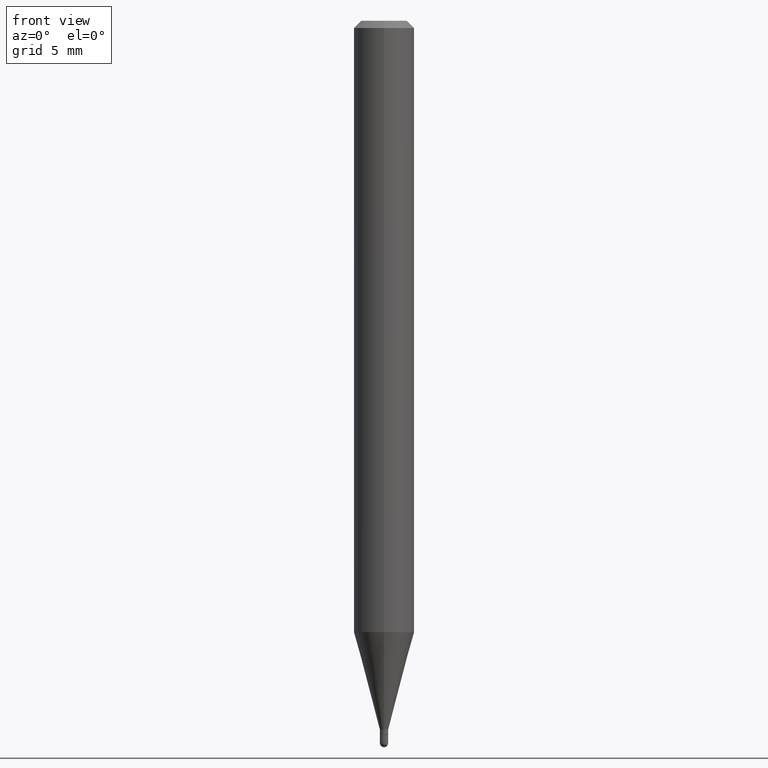
[diagram: clean part render]
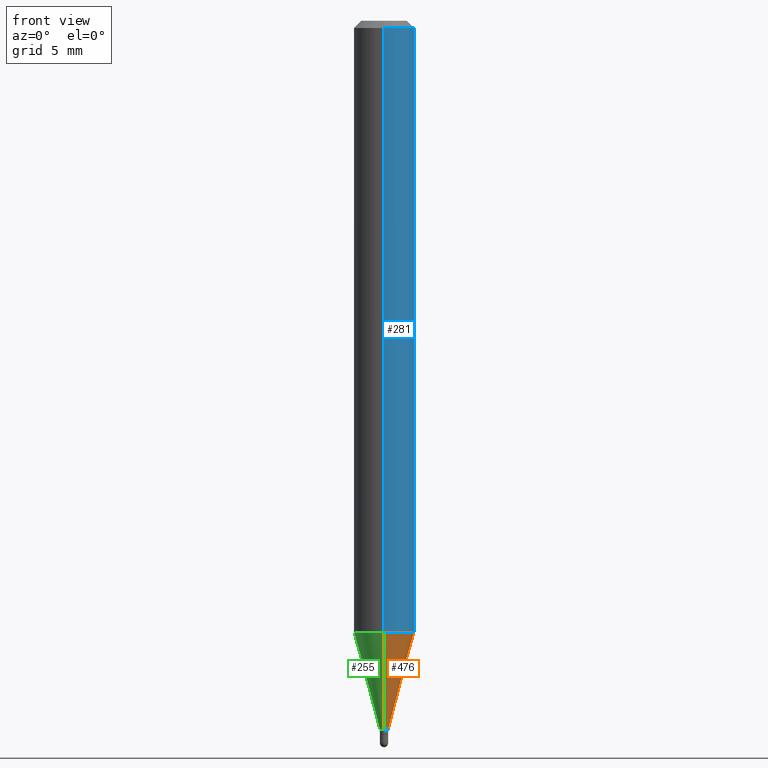
[diagram: same view with three faces highlighted in distinct colors, each labeled with its STEP entity id]
A machine part, front view with three faces highlighted in distinct colors.
Their STEP definitions:

[orange] entity #476 — the highlighted conical surface has half-angle 15 deg.
#20 = VECTOR ( 'NONE', #334, 39.37007874015747433 ) ;
#49 = DIRECTION ( 'NONE',  ( -6.982962677686265922E-15, -1.000000000000000000, 4.370956789862821150E-15 ) ) ;
#52 = LINE ( 'NONE', #361, #89 ) ;
#53 = LINE ( 'NONE', #178, #20 ) ;
#57 = VERTEX_POINT ( 'NONE', #104 ) ;
#59 = DIRECTION ( 'NONE',  ( -6.982962677686266711E-15, -1.000000000000000000, 0.000000000000000000 ) ) ;
#80 = CARTESIAN_POINT ( 'NONE',  ( -4.364351673553606573E-16, -0.06250000000000439926, -1.262469256391280714 ) ) ;
#86 = AXIS2_PLACEMENT_3D ( 'NONE', #366, #247, #326 ) ;
#89 = VECTOR ( 'NONE', #330, 39.37007874015749564 ) ;
#91 = FACE_OUTER_BOUND ( 'NONE', #415, .T. ) ;
#104 = CARTESIAN_POINT ( 'NONE',  ( 4.440892098500932831E-16, 0.06249999999999557992, -1.262469256391281158 ) ) ;
#125 = CARTESIAN_POINT ( 'NONE',  ( -5.935518276029691682E-17, -0.008500000000005034778, -1.463999999999999968 ) ) ;
#134 = EDGE_CURVE ( 'NONE', #370, #57, #53, .T. ) ;
#168 = DIRECTION ( 'NONE',  ( -2.445476314194912029E-29, 3.491470586945817923E-15, 1.000000000000000000 ) ) ;
#178 = CARTESIAN_POINT ( 'NONE',  ( 6.039613253964376003E-17, 0.008499999999994812053, -1.463999999999999968 ) ) ;
#189 = AXIS2_PLACEMENT_3D ( 'NONE', #283, #168, #59 ) ;
#190 = ORIENTED_EDGE ( 'NONE', *, *, #437, .F. ) ;
#247 = DIRECTION ( 'NONE',  ( -2.445476314194912029E-29, 3.491470586945817923E-15, 1.000000000000000000 ) ) ;
#272 = ORIENTED_EDGE ( 'NONE', *, *, #458, .F. ) ;
#283 = CARTESIAN_POINT ( 'NONE',  ( 3.580177323981351404E-29, -5.111512939288677386E-15, -1.463999999999999968 ) ) ;
#297 = ORIENTED_EDGE ( 'NONE', *, *, #389, .T. ) ;
#307 = CONICAL_SURFACE ( 'NONE', #86, 0.008499999999999922548, 0.2617993877991501295 ) ;
#308 = CIRCLE ( 'NONE', #379, 0.06250000000000000000 ) ;
#314 = VERTEX_POINT ( 'NONE', #80 ) ;
#315 = ORIENTED_EDGE ( 'NONE', *, *, #134, .T. ) ;
#326 = DIRECTION ( 'NONE',  ( -6.982962677686266711E-15, -1.000000000000000000, 0.000000000000000000 ) ) ;
#330 = DIRECTION ( 'NONE',  ( -1.807323732225328562E-15, -0.2588190451025179639, 0.9659258262890689783 ) ) ;
#334 = DIRECTION ( 'NONE',  ( 1.839019923739599526E-15, 0.2588190451025248473, 0.9659258262890673130 ) ) ;
#359 = VERTEX_POINT ( 'NONE', #125 ) ;
#361 = CARTESIAN_POINT ( 'NONE',  ( -5.935518276029691682E-17, -0.008500000000005034778, -1.463999999999999968 ) ) ;
#366 = CARTESIAN_POINT ( 'NONE',  ( 3.580177323981351404E-29, -5.111512939288677386E-15, -1.463999999999999968 ) ) ;
#370 = VERTEX_POINT ( 'NONE', #402 ) ;
#379 = AXIS2_PLACEMENT_3D ( 'NONE', #440, #405, #49 ) ;
#389 = EDGE_CURVE ( 'NONE', #359, #370, #413, .T. ) ;
#402 = CARTESIAN_POINT ( 'NONE',  ( 2.522426711948687250E-16, 0.008499999999994812053, -1.463999999999999968 ) ) ;
#405 = DIRECTION ( 'NONE',  ( -2.445476314194912029E-29, 3.491470586945817923E-15, 1.000000000000000000 ) ) ;
#413 = CIRCLE ( 'NONE', #189, 0.008499999999999922548 ) ;
#415 = EDGE_LOOP ( 'NONE', ( #297, #315, #272, #190 ) ) ;
#437 = EDGE_CURVE ( 'NONE', #359, #314, #52, .T. ) ;
#440 = CARTESIAN_POINT ( 'NONE',  ( 3.087338663904141149E-29, -4.407874275613516447E-15, -1.262469256391280936 ) ) ;
#458 = EDGE_CURVE ( 'NONE', #314, #57, #308, .T. ) ;
#476 = ADVANCED_FACE ( 'NONE', ( #91 ), #307, .T. ) ;

[blue] entity #281 — the highlighted cylindrical surface (edge-blend (fillet) strip) has radius 1.5875 mm, axis along (-0, 0, 1).
#14 = DIRECTION ( 'NONE',  ( -6.982962677686265922E-15, -1.000000000000000000, 3.483106191921935554E-15 ) ) ;
#16 = VECTOR ( 'NONE', #409, 39.37007874015748143 ) ;
#31 = AXIS2_PLACEMENT_3D ( 'NONE', #181, #214, #14 ) ;
#33 = FACE_OUTER_BOUND ( 'NONE', #39, .T. ) ;
#37 = CYLINDRICAL_SURFACE ( 'NONE', #367, 0.06250000000000000000 ) ;
#39 = EDGE_LOOP ( 'NONE', ( #158, #403, #466, #376 ) ) ;
#49 = DIRECTION ( 'NONE',  ( -6.982962677686265922E-15, -1.000000000000000000, 4.370956789862821150E-15 ) ) ;
#57 = VERTEX_POINT ( 'NONE', #104 ) ;
#80 = CARTESIAN_POINT ( 'NONE',  ( -4.364351673553606573E-16, -0.06250000000000439926, -1.262469256391280714 ) ) ;
#104 = CARTESIAN_POINT ( 'NONE',  ( 4.440892098500932831E-16, 0.06249999999999557992, -1.262469256391281158 ) ) ;
#132 = DIRECTION ( 'NONE',  ( -2.445476314194912029E-29, 3.491470586945817529E-15, 1.000000000000000000 ) ) ;
#141 = CIRCLE ( 'NONE', #31, 0.06250000000000000000 ) ;
#158 = ORIENTED_EDGE ( 'NONE', *, *, #458, .T. ) ;
#181 = CARTESIAN_POINT ( 'NONE',  ( 3.668214471292309505E-31, -5.237205880418643043E-17, -0.01499999999999976179 ) ) ;
#192 = DIRECTION ( 'NONE',  ( -6.982962677686265922E-15, -1.000000000000000000, 3.491470586945817529E-15 ) ) ;
#214 = DIRECTION ( 'NONE',  ( -2.445476314194912029E-29, 3.491470586945817923E-15, 1.000000000000000000 ) ) ;
#250 = LINE ( 'NONE', #481, #16 ) ;
#273 = DIRECTION ( 'NONE',  ( -2.445476314194912029E-29, 3.491470586945817923E-15, 1.000000000000000000 ) ) ;
#274 = VERTEX_POINT ( 'NONE', #388 ) ;
#281 = ADVANCED_FACE ( 'NONE', ( #33 ), #37, .T. ) ;
#291 = VERTEX_POINT ( 'NONE', #507 ) ;
#308 = CIRCLE ( 'NONE', #379, 0.06250000000000000000 ) ;
#313 = CARTESIAN_POINT ( 'NONE',  ( 0.000000000000000000, 0.000000000000000000, 0.000000000000000000 ) ) ;
#314 = VERTEX_POINT ( 'NONE', #80 ) ;
#367 = AXIS2_PLACEMENT_3D ( 'NONE', #313, #273, #192 ) ;
#376 = ORIENTED_EDGE ( 'NONE', *, *, #495, .F. ) ;
#379 = AXIS2_PLACEMENT_3D ( 'NONE', #440, #405, #49 ) ;
#388 = CARTESIAN_POINT ( 'NONE',  ( 4.440892098500935790E-16, 0.06249999999999995143, -0.01499999999999997863 ) ) ;
#400 = VECTOR ( 'NONE', #132, 39.37007874015748143 ) ;
#403 = ORIENTED_EDGE ( 'NONE', *, *, #504, .T. ) ;
#405 = DIRECTION ( 'NONE',  ( -2.445476314194912029E-29, 3.491470586945817923E-15, 1.000000000000000000 ) ) ;
#409 = DIRECTION ( 'NONE',  ( -2.445476314194912029E-29, 3.491470586945817529E-15, 1.000000000000000000 ) ) ;
#440 = CARTESIAN_POINT ( 'NONE',  ( 3.087338663904141149E-29, -4.407874275613516447E-15, -1.262469256391280936 ) ) ;
#447 = LINE ( 'NONE', #471, #400 ) ;
#455 = EDGE_CURVE ( 'NONE', #291, #274, #141, .T. ) ;
#458 = EDGE_CURVE ( 'NONE', #314, #57, #308, .T. ) ;
#466 = ORIENTED_EDGE ( 'NONE', *, *, #455, .F. ) ;
#471 = CARTESIAN_POINT ( 'NONE',  ( 4.440892098500625669E-16, 0.06250000000000000000, -2.182169116841135955E-16 ) ) ;
#481 = CARTESIAN_POINT ( 'NONE',  ( -4.364351673553916201E-16, -0.06250000000000000000, 2.182169116841135955E-16 ) ) ;
#495 = EDGE_CURVE ( 'NONE', #314, #291, #250, .T. ) ;
#504 = EDGE_CURVE ( 'NONE', #57, #274, #447, .T. ) ;
#507 = CARTESIAN_POINT ( 'NONE',  ( -4.364351673553912750E-16, -0.06250000000000005551, -0.01499999999999954321 ) ) ;

[green] entity #255 — the highlighted conical surface has half-angle 15 deg.
#3 = DIRECTION ( 'NONE',  ( -2.445476314194912029E-29, 3.491470586945817923E-15, 1.000000000000000000 ) ) ;
#20 = VECTOR ( 'NONE', #334, 39.37007874015747433 ) ;
#32 = EDGE_CURVE ( 'NONE', #57, #314, #234, .T. ) ;
#43 = FACE_OUTER_BOUND ( 'NONE', #474, .T. ) ;
#51 = ORIENTED_EDGE ( 'NONE', *, *, #332, .T. ) ;
#52 = LINE ( 'NONE', #361, #89 ) ;
#53 = LINE ( 'NONE', #178, #20 ) ;
#57 = VERTEX_POINT ( 'NONE', #104 ) ;
#72 = ORIENTED_EDGE ( 'NONE', *, *, #437, .T. ) ;
#80 = CARTESIAN_POINT ( 'NONE',  ( -4.364351673553606573E-16, -0.06250000000000439926, -1.262469256391280714 ) ) ;
#89 = VECTOR ( 'NONE', #330, 39.37007874015749564 ) ;
#104 = CARTESIAN_POINT ( 'NONE',  ( 4.440892098500932831E-16, 0.06249999999999557992, -1.262469256391281158 ) ) ;
#125 = CARTESIAN_POINT ( 'NONE',  ( -5.935518276029691682E-17, -0.008500000000005034778, -1.463999999999999968 ) ) ;
#134 = EDGE_CURVE ( 'NONE', #370, #57, #53, .T. ) ;
#145 = ORIENTED_EDGE ( 'NONE', *, *, #134, .F. ) ;
#157 = DIRECTION ( 'NONE',  ( -2.445476314194912029E-29, 3.491470586945817923E-15, 1.000000000000000000 ) ) ;
#167 = DIRECTION ( 'NONE',  ( -6.982962677686265922E-15, -1.000000000000000000, 4.370956789862821150E-15 ) ) ;
#178 = CARTESIAN_POINT ( 'NONE',  ( 6.039613253964376003E-17, 0.008499999999994812053, -1.463999999999999968 ) ) ;
#194 = DIRECTION ( 'NONE',  ( -6.982962677686266711E-15, -1.000000000000000000, 0.000000000000000000 ) ) ;
#210 = AXIS2_PLACEMENT_3D ( 'NONE', #503, #427, #194 ) ;
#220 = ORIENTED_EDGE ( 'NONE', *, *, #32, .F. ) ;
#234 = CIRCLE ( 'NONE', #337, 0.06250000000000000000 ) ;
#255 = ADVANCED_FACE ( 'NONE', ( #43 ), #505, .T. ) ;
#269 = AXIS2_PLACEMENT_3D ( 'NONE', #350, #157, #469 ) ;
#314 = VERTEX_POINT ( 'NONE', #80 ) ;
#330 = DIRECTION ( 'NONE',  ( -1.807323732225328562E-15, -0.2588190451025179639, 0.9659258262890689783 ) ) ;
#332 = EDGE_CURVE ( 'NONE', #370, #359, #357, .T. ) ;
#334 = DIRECTION ( 'NONE',  ( 1.839019923739599526E-15, 0.2588190451025248473, 0.9659258262890673130 ) ) ;
#337 = AXIS2_PLACEMENT_3D ( 'NONE', #441, #3, #167 ) ;
#350 = CARTESIAN_POINT ( 'NONE',  ( 3.580177323981351404E-29, -5.111512939288677386E-15, -1.463999999999999968 ) ) ;
#357 = CIRCLE ( 'NONE', #269, 0.008499999999999922548 ) ;
#359 = VERTEX_POINT ( 'NONE', #125 ) ;
#361 = CARTESIAN_POINT ( 'NONE',  ( -5.935518276029691682E-17, -0.008500000000005034778, -1.463999999999999968 ) ) ;
#370 = VERTEX_POINT ( 'NONE', #402 ) ;
#402 = CARTESIAN_POINT ( 'NONE',  ( 2.522426711948687250E-16, 0.008499999999994812053, -1.463999999999999968 ) ) ;
#427 = DIRECTION ( 'NONE',  ( -2.445476314194912029E-29, 3.491470586945817923E-15, 1.000000000000000000 ) ) ;
#437 = EDGE_CURVE ( 'NONE', #359, #314, #52, .T. ) ;
#441 = CARTESIAN_POINT ( 'NONE',  ( 3.087338663904141149E-29, -4.407874275613516447E-15, -1.262469256391280936 ) ) ;
#469 = DIRECTION ( 'NONE',  ( -6.982962677686266711E-15, -1.000000000000000000, 0.000000000000000000 ) ) ;
#474 = EDGE_LOOP ( 'NONE', ( #145, #51, #72, #220 ) ) ;
#503 = CARTESIAN_POINT ( 'NONE',  ( 3.580177323981351404E-29, -5.111512939288677386E-15, -1.463999999999999968 ) ) ;
#505 = CONICAL_SURFACE ( 'NONE', #210, 0.008499999999999922548, 0.2617993877991501295 ) ;